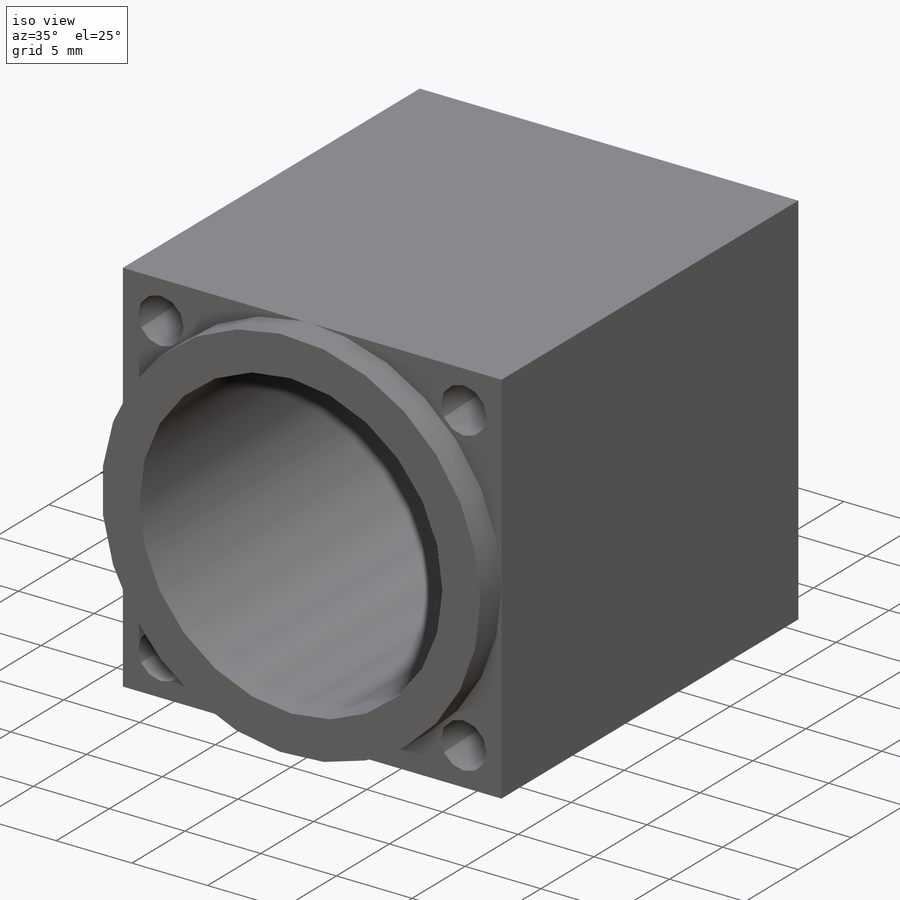
[diagram: iso view]
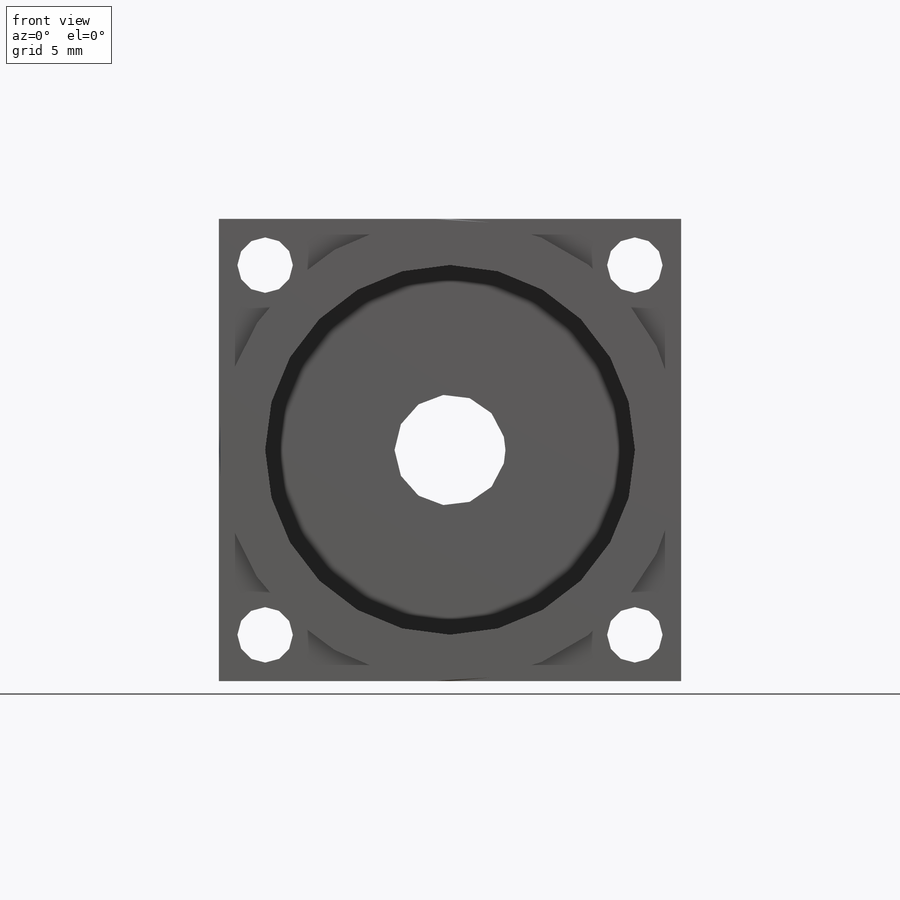
[diagram: front view]
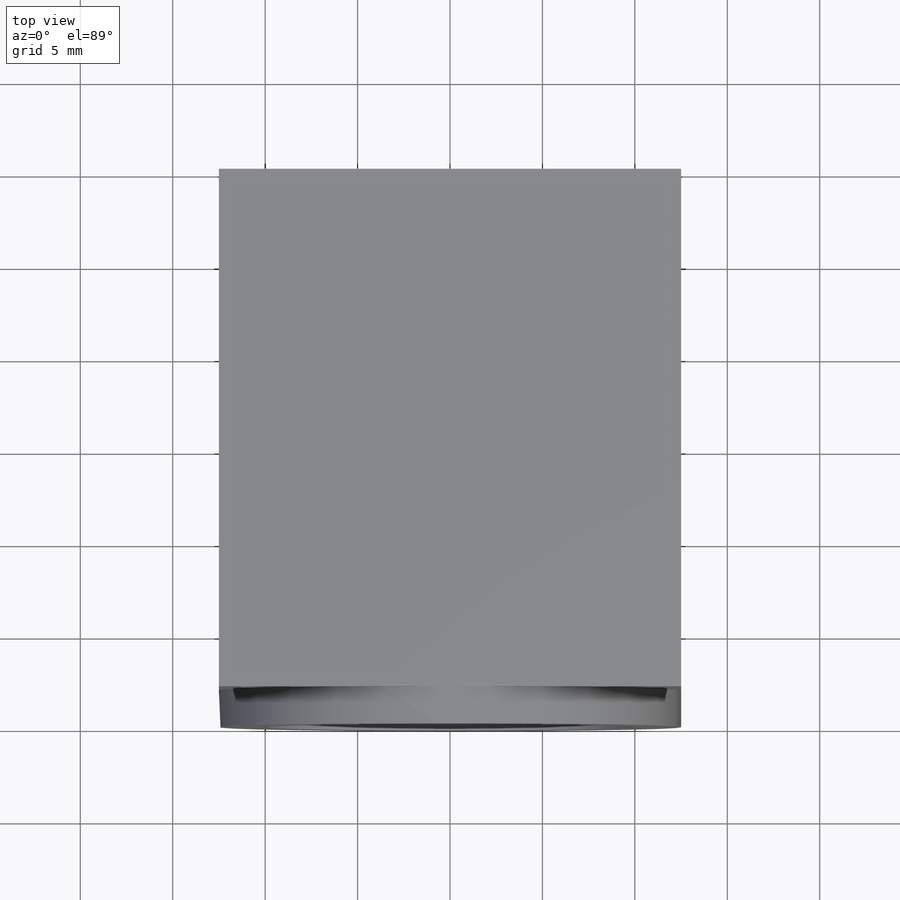
[diagram: top view]
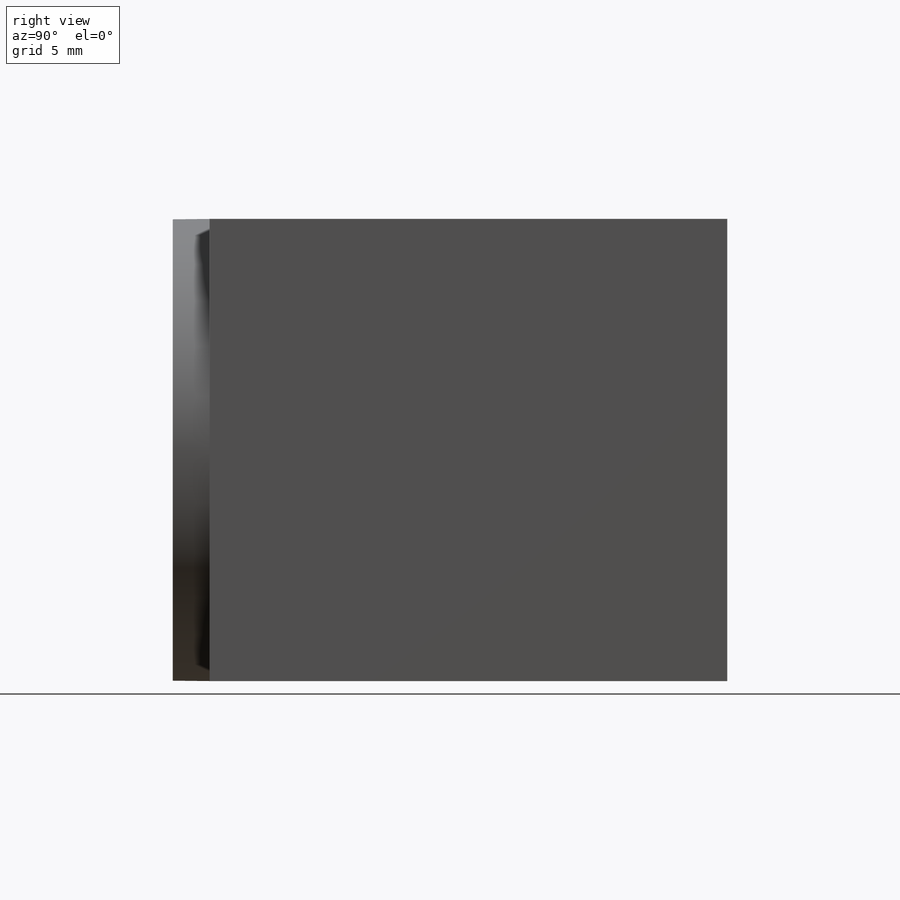
[diagram: right view]
SOLIDWORKS PART (.sldprt)
format: sldprt  version: not decoded by parser v0  size: 225,280 bytes
history: native  units: mm
features: sketch x4, plane x3, cut_extrude x2, material x1, extrude x1 (+10 scaffold rows collapsed)
feature tree (21):
  scaffold x10  (default folders/planes/origin — collapsed)
  material  "Matériau <non spécifié>"
  plane  "Plan de face"
  plane  "Plan de dessus"
  plane  "Plan de droite"
  sketch  "Esquisse1"  dims[c1.D1=12.5mm c1.D2=20.0mm c1.D3=20.0mm c1.D4=10.0mm c1.D5=20.0mm c2.D1=1.0mm]
  extrude  "Extrusion3"  Depth=30mm
  sketch  "Esquisse7"  dims[D1=~7.392803mm]
  sketch  "Esquisse8"
  cut_extrude  "Extrusion4"  Depth=28mm
  sketch  "Esquisse10"
  cut_extrude  "Extrusion6"  Depth=2mm
decode coverage: 5 of 7 modeling features carry decoded parameters
note: ~ marks probable driven/reference dimensions
note: suppression state not decoded; provenance and decode notes live in map.json
